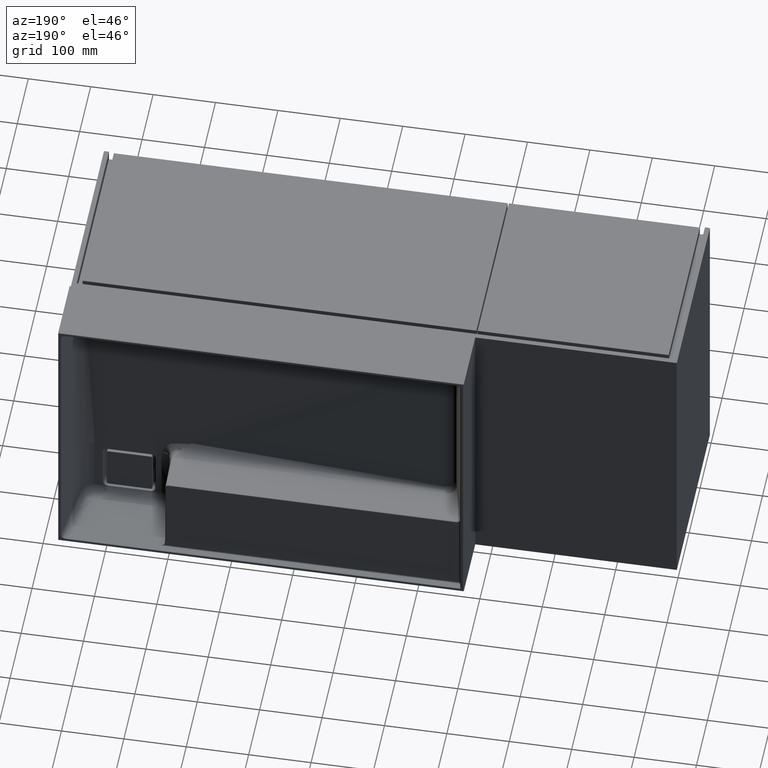
[diagram: clean part render]
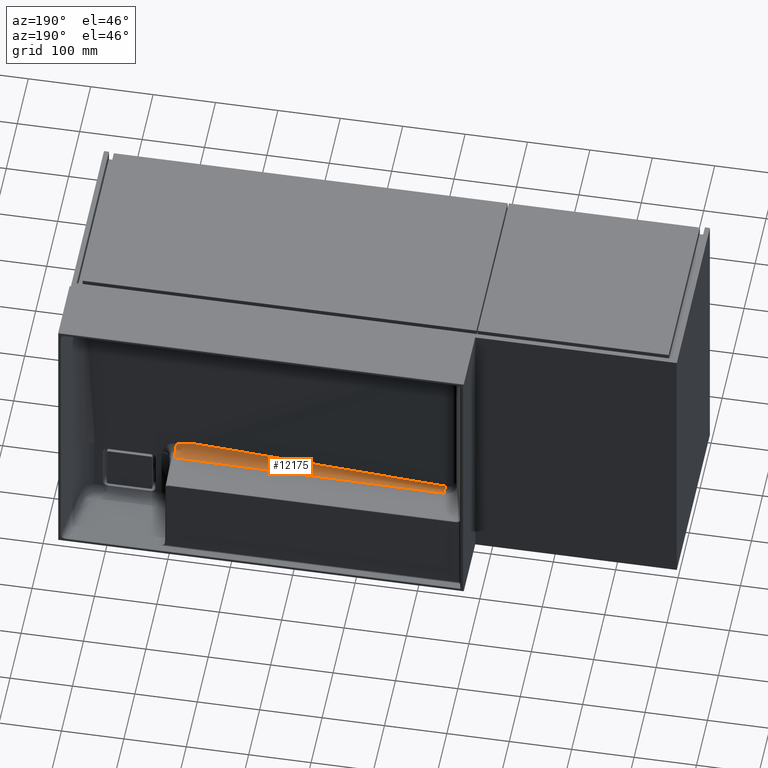
[diagram: same view with one face highlighted and labeled with its STEP entity id]
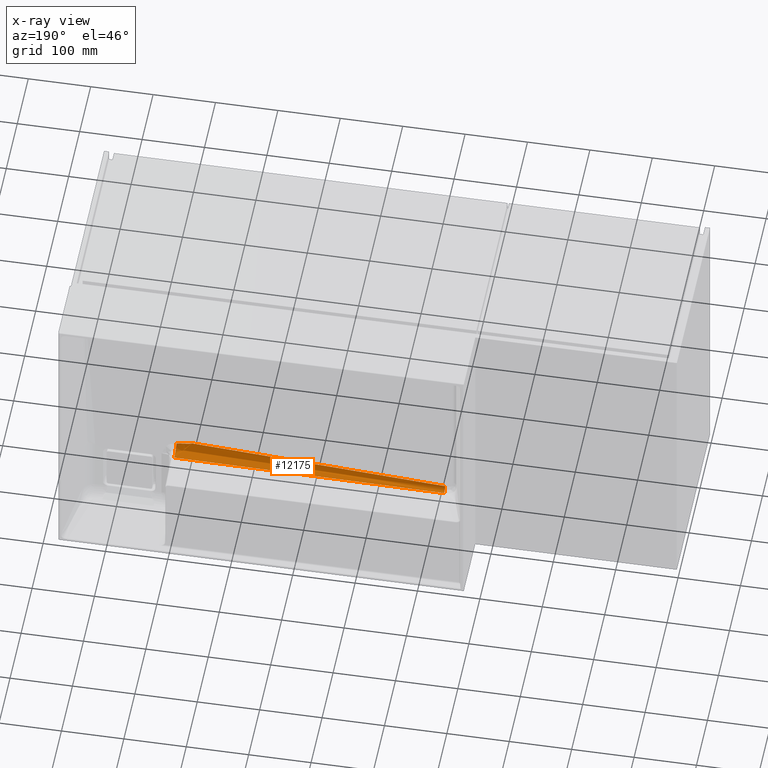
[diagram: x-ray of the same camera — body ghosted, the highlighted face saturated]
A machine part, auxiliary view. The second image highlights one B-rep face of the part: STEP entity #12175.
The next image is the same camera in x-ray: the body ghosted, the highlighted face saturated — about 0% of this face is hidden behind the body in this view.
In plain terms, the highlighted face is a freeform B-spline surface patch.
Its self-contained STEP definition (entity closure, byte-faithful):
#162 = CARTESIAN_POINT ( 'NONE',  ( 779.1951356193167157, 316.7731144977072972, -305.8622391571539652 ) ) ;
#453 = VERTEX_POINT ( 'NONE', #6581 ) ;
#922 = CARTESIAN_POINT ( 'NONE',  ( 368.0743314995631295, 329.4438529033142800, -323.2833518737480745 ) ) ;
#928 = EDGE_CURVE ( 'NONE', #6321, #453, #5033, .T. ) ;
#1175 = CARTESIAN_POINT ( 'NONE',  ( 503.9391131653284788, 325.2409267287021066, -315.3799392485047974 ) ) ;
#1370 = CARTESIAN_POINT ( 'NONE',  ( 776.8851095079244260, 316.8069209751066637, -305.1446317420969763 ) ) ;
#1445 = CARTESIAN_POINT ( 'NONE',  ( 796.7355162878733381, 316.6443237527145698, -308.5960700885873393 ) ) ;
#2120 = CARTESIAN_POINT ( 'NONE',  ( 512.3806750054383201, 324.9797901723597420, -315.3731011471215311 ) ) ;
#2218 = CARTESIAN_POINT ( 'NONE',  ( 801.0187278054319222, 316.6229568114037534, -309.0496244574869706 ) ) ;
#2308 = ORIENTED_EDGE ( 'NONE', *, *, #9178, .T. ) ;
#2561 = CARTESIAN_POINT ( 'NONE',  ( 775.9034338818813694, 316.8278122476279464, -304.7011743568679663 ) ) ;
#2637 = CARTESIAN_POINT ( 'NONE',  ( 787.1276669657437424, 316.7024201626881563, -307.3628622008578191 ) ) ;
#3316 = FACE_OUTER_BOUND ( 'NONE', #15539, .T. ) ;
#3397 = CARTESIAN_POINT ( 'NONE',  ( 801.5847807435345658, 334.5450962369287140, -323.4169326315874287 ) ) ;
#3822 = CARTESIAN_POINT ( 'NONE',  ( 782.8815094718891032, 316.7354091234105340, -306.6626081474763055 ) ) ;
#4296 = CARTESIAN_POINT ( 'NONE',  ( 657.2721302568238571, 339.0093540719751104, -323.5338333371205977 ) ) ;
#4594 = CARTESIAN_POINT ( 'NONE',  ( 368.3153831980217205, 337.2308073617368223, -323.4872604524591111 ) ) ;
#4786 = VERTEX_POINT ( 'NONE', #13820 ) ;
#4940 = EDGE_CURVE ( 'NONE', #4786, #453, #6439, .T. ) ;
#5033 = B_SPLINE_CURVE_WITH_KNOTS ( 'NONE', 3,
 ( #13539, #2561, #7443, #12336, #1370, #6251, #11135, #162, #5044, #9925, #14832, #3822, #8720, #13616, #2637, #7522, #12407, #1445, #6327, #11212 ),
 .UNSPECIFIED., .F., .F.,
 ( 4, 2, 2, 2, 2, 2, 2, 2, 2, 4 ),
 ( 0.0000000000000000000, 0.0008055719474762246908, 0.001611143894952449382, 0.003222287789904898763, 0.004833431684857347928, 0.006444575579809797526, 0.009666863369714697590, 0.01288915115961959852, 0.01933372673942904824, 0.02577830231923849275 ),
 .UNSPECIFIED. ) ;
#5044 = CARTESIAN_POINT ( 'NONE',  ( 779.7198708462867671, 316.7670150134595133, -305.9917124256164129 ) ) ;
#5719 = EDGE_CURVE ( 'NONE', #4786, #12954, #7702, .T. ) ;
#5782 = CARTESIAN_POINT ( 'NONE',  ( 775.6727039073530250, 316.8349497930412895, -304.5496662463540929 ) ) ;
#5807 = CARTESIAN_POINT ( 'NONE',  ( 512.3869819862740087, 324.9795950682678836, -323.1664511682149055 ) ) ;
#5819 = CARTESIAN_POINT ( 'NONE',  ( 368.3153831980612267, 337.2308073616522393, -323.4872604524568942 ) ) ;
#6052 = CARTESIAN_POINT ( 'NONE',  ( 639.8025145883322011, 321.0380432513831579, -305.7710013909584177 ) ) ;
#6251 = CARTESIAN_POINT ( 'NONE',  ( 777.6420301557781158, 316.7939460989398981, -305.4200484096364789 ) ) ;
#6321 = VERTEX_POINT ( 'NONE', #5782 ) ;
#6327 = CARTESIAN_POINT ( 'NONE',  ( 798.8765483860705672, 316.6333546551164773, -308.8289102535022153 ) ) ;
#6439 =( BOUNDED_CURVE ( )  B_SPLINE_CURVE ( 2, ( #8302, #13188, #2218 ),
 .UNSPECIFIED., .F., .T. ) 
 B_SPLINE_CURVE_WITH_KNOTS ( ( 3, 3 ),
 ( 0.0000000000000000000, 1.000000000000000000 ),
 .UNSPECIFIED. ) 
 CURVE ( )  GEOMETRIC_REPRESENTATION_ITEM ( )  RATIONAL_B_SPLINE_CURVE ( ( 1.000000000000000000, 0.7641457412185796993, 0.9204434452545302570 ) ) 
 REPRESENTATION_ITEM ( '' )  );
#6581 = CARTESIAN_POINT ( 'NONE',  ( 801.0187278054319222, 316.6229568114037534, -309.0496244574869706 ) ) ;
#6699 = VERTEX_POINT ( 'NONE', #9013 ) ;
#7005 = CARTESIAN_POINT ( 'NONE',  ( 656.6846533935000707, 320.5158006054395514, -304.5403441625850292 ) ) ;
#7443 = CARTESIAN_POINT ( 'NONE',  ( 776.1447386451466173, 316.8220531439236538, -304.8234223945268013 ) ) ;
#7522 = CARTESIAN_POINT ( 'NONE',  ( 790.3228345796004533, 316.6808296650964394, -307.8211619812083768 ) ) ;
#7702 = B_SPLINE_CURVE_WITH_KNOTS ( 'NONE', 3,
 ( #15297, #4296, #9193, #14084 ),
 .UNSPECIFIED., .F., .F.,
 ( 4, 4 ),
 ( -0.4346882425457793686, -0.001543048426497328762 ),
 .UNSPECIFIED. ) ;
#8302 = CARTESIAN_POINT ( 'NONE',  ( 801.5847807437794472, 334.5450962275781421, -323.4169326313426041 ) ) ;
#8720 = CARTESIAN_POINT ( 'NONE',  ( 783.9409624441328788, 316.7265386575341495, -306.8509008232535962 ) ) ;
#9011 =( BOUNDED_CURVE ( )  B_SPLINE_CURVE ( 2, ( #5819, #10703, #15606 ),
 .UNSPECIFIED., .F., .F. ) 
 B_SPLINE_CURVE_WITH_KNOTS ( ( 3, 3 ),
 ( 0.0000000000000000000, 1.000000000000000000 ),
 .UNSPECIFIED. ) 
 CURVE ( )  GEOMETRIC_REPRESENTATION_ITEM ( )  RATIONAL_B_SPLINE_CURVE ( ( 1.000000000000000000, 0.7162975751252874668, 1.000000000000000000 ) ) 
 REPRESENTATION_ITEM ( '' )  );
#9013 = CARTESIAN_POINT ( 'NONE',  ( 368.0680245187274977, 329.4440480074061384, -315.4900018526547001 ) ) ;
#9178 = EDGE_CURVE ( 'NONE', #6699, #6321, #10014, .T. ) ;
#9193 = CARTESIAN_POINT ( 'NONE',  ( 512.6280336847324861, 332.7665495266904827, -323.3703597469259421 ) ) ;
#9480 = CARTESIAN_POINT ( 'NONE',  ( 512.6280336847324861, 332.7665495266904827, -323.3703597469259421 ) ) ;
#9925 = CARTESIAN_POINT ( 'NONE',  ( 780.7709554818958395, 316.7556448546314982, -306.2330658854577905 ) ) ;
#10014 = B_SPLINE_CURVE_WITH_KNOTS ( 'NONE', 3,
 ( #12144, #1175, #6052, #10947 ),
 .UNSPECIFIED., .F., .F.,
 ( 4, 4 ),
 ( -0.4346882425457793686, -0.02687985659662373017 ),
 .UNSPECIFIED. ) ;
#10689 = CARTESIAN_POINT ( 'NONE',  ( 656.6996324729848311, 320.5153372332214872, -323.0495504626818501 ) ) ;
#10703 = CARTESIAN_POINT ( 'NONE',  ( 368.0743314995630726, 329.4438529033142800, -323.2833518737480745 ) ) ;
#10844 = CARTESIAN_POINT ( 'NONE',  ( 368.3153831980612267, 337.2308073616522393, -323.4872604524568942 ) ) ;
#10947 = CARTESIAN_POINT ( 'NONE',  ( 775.6727039073530250, 316.8349497930412895, -304.5496662463540929 ) ) ;
#11135 = CARTESIAN_POINT ( 'NONE',  ( 778.1566285722617522, 316.7865976977786886, -305.5760323383942136 ) ) ;
#11212 = CARTESIAN_POINT ( 'NONE',  ( 801.0187278054319222, 316.6229568114037534, -309.0496244574869706 ) ) ;
#11895 = CARTESIAN_POINT ( 'NONE',  ( 800.9973038802108931, 316.0515427703931550, -304.4234434570518602 ) ) ;
#12144 = CARTESIAN_POINT ( 'NONE',  ( 368.0680245187274977, 329.4440480074061384, -315.4900018526547001 ) ) ;
#12175 = ADVANCED_FACE ( 'NONE', ( #3316 ), #15057, .F. ) ;
#12336 = CARTESIAN_POINT ( 'NONE',  ( 776.6353241518369259, 316.8115746191032258, -305.0458492099915020 ) ) ;
#12407 = CARTESIAN_POINT ( 'NONE',  ( 792.4584472360635345, 316.6680791695544599, -308.0918157390210013 ) ) ;
#12458 = ORIENTED_EDGE ( 'NONE', *, *, #5719, .T. ) ;
#12954 = VERTEX_POINT ( 'NONE', #10844 ) ;
#13095 = CARTESIAN_POINT ( 'NONE',  ( 368.0680245187274977, 329.4440480074061384, -315.4900018526547001 ) ) ;
#13188 = CARTESIAN_POINT ( 'NONE',  ( 801.1386401213813997, 320.1329318382711335, -323.0395368250019601 ) ) ;
#13539 = CARTESIAN_POINT ( 'NONE',  ( 775.6727039073530250, 316.8349497930412895, -304.5496662463540929 ) ) ;
#13616 = CARTESIAN_POINT ( 'NONE',  ( 786.0640083194165300, 316.7100343581348056, -307.2012362778853571 ) ) ;
#13820 = CARTESIAN_POINT ( 'NONE',  ( 801.5847807437794472, 334.5450962275781421, -323.4169326313426041 ) ) ;
#14084 = CARTESIAN_POINT ( 'NONE',  ( 368.3153831980612267, 337.2308073616522393, -323.4872604524568942 ) ) ;
#14141 = ORIENTED_EDGE ( 'NONE', *, *, #928, .T. ) ;
#14237 = EDGE_CURVE ( 'NONE', #12954, #6699, #9011, .T. ) ;
#14384 = CARTESIAN_POINT ( 'NONE',  ( 657.2721302568238571, 339.0093540719751104, -323.5338333371205977 ) ) ;
#14829 = ORIENTED_EDGE ( 'NONE', *, *, #4940, .F. ) ;
#14832 = CARTESIAN_POINT ( 'NONE',  ( 781.2978884602723610, 316.7503751772954388, -306.3449249084020494 ) ) ;
#14869 = ORIENTED_EDGE ( 'NONE', *, *, #14237, .T. ) ;
#15057 =( BOUNDED_SURFACE ( )  B_SPLINE_SURFACE ( 2, 3, ( 
 ( #13095, #2120, #7005, #11895 ),
 ( #922, #5807, #10689, #15594 ),
 ( #4594, #9480, #14384, #3397 ) ),
 .UNSPECIFIED., .F., .F., .F. ) 
 B_SPLINE_SURFACE_WITH_KNOTS ( ( 3, 3 ),
 ( 4, 4 ),
 ( 0.0000000000000000000, 1.000000000000000000 ),
 ( -0.4346882425457793686, -0.001543048426497325726 ),
 .UNSPECIFIED. ) 
 GEOMETRIC_REPRESENTATION_ITEM ( )  RATIONAL_B_SPLINE_SURFACE ( (
 ( 1.000000000000000000, 1.000000000000000000, 1.000000000000000000, 1.000000000000000000),
 ( 0.7162975751252874668, 0.7162975751252874668, 0.7162975751252874668, 0.7162975751252874668),
 ( 1.000000000000000000, 1.000000000000000000, 1.000000000000000000, 1.000000000000000000) ) ) 
 REPRESENTATION_ITEM ( '' )  SURFACE ( )  );
#15297 = CARTESIAN_POINT ( 'NONE',  ( 801.5847807437794472, 334.5450962275781421, -323.4169326313426041 ) ) ;
#15539 = EDGE_LOOP ( 'NONE', ( #14141, #14829, #12458, #14869, #2308 ) ) ;
#15594 = CARTESIAN_POINT ( 'NONE',  ( 801.0122829596955398, 316.0510793981751476, -322.9326497571486243 ) ) ;
#15606 = CARTESIAN_POINT ( 'NONE',  ( 368.0680245187274977, 329.4440480074061384, -315.4900018526547001 ) ) ;